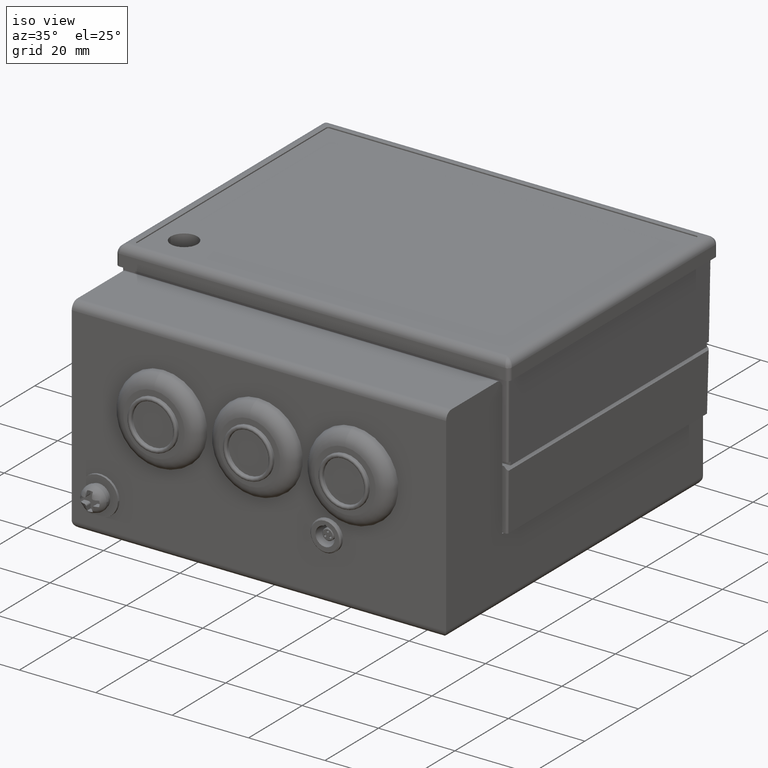
[diagram: clean part render]
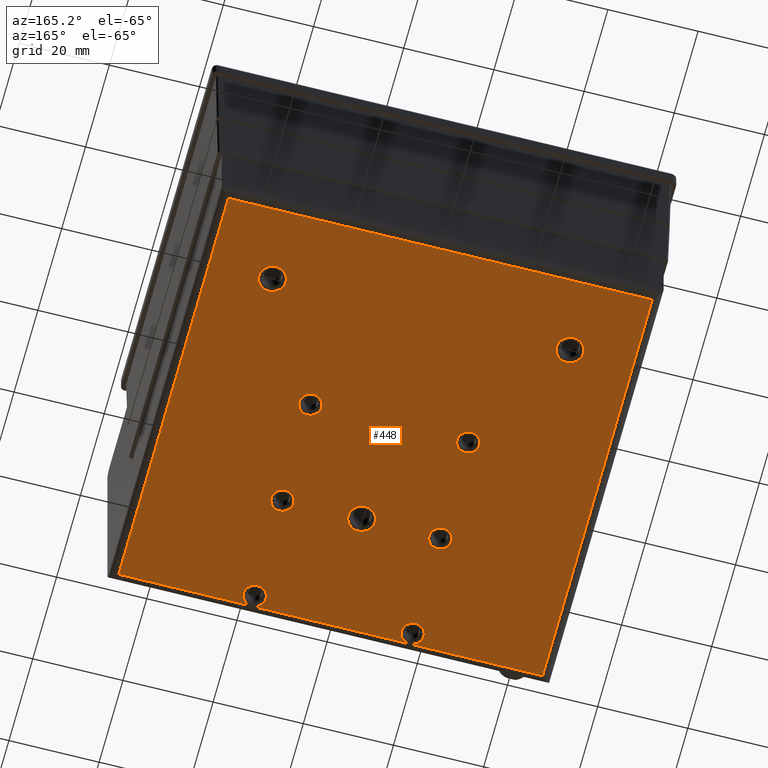
[diagram: tour spotlight — one face highlighted and labeled with its STEP entity id]
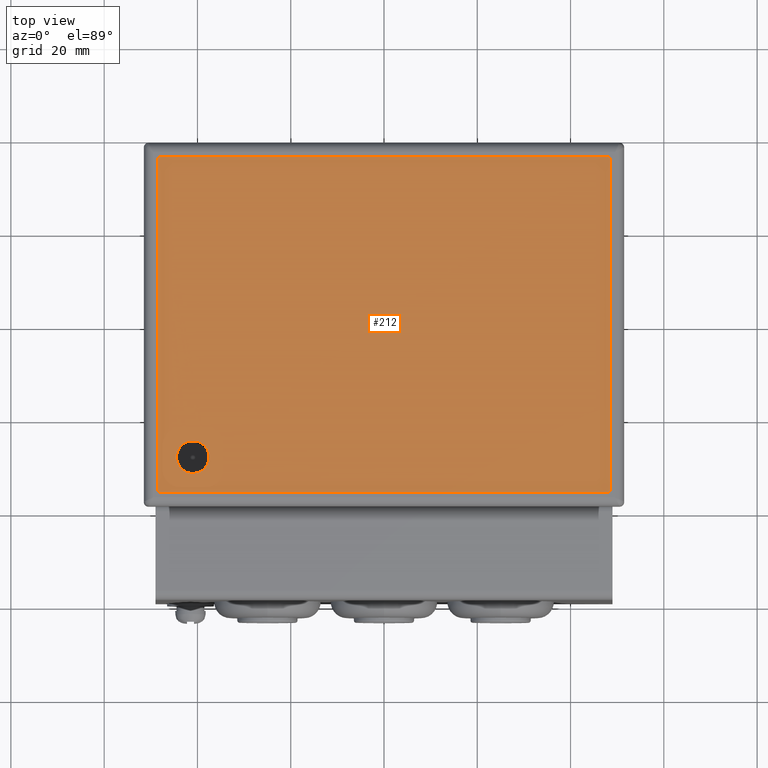
[diagram: tour spotlight — one face highlighted and labeled with its STEP entity id]
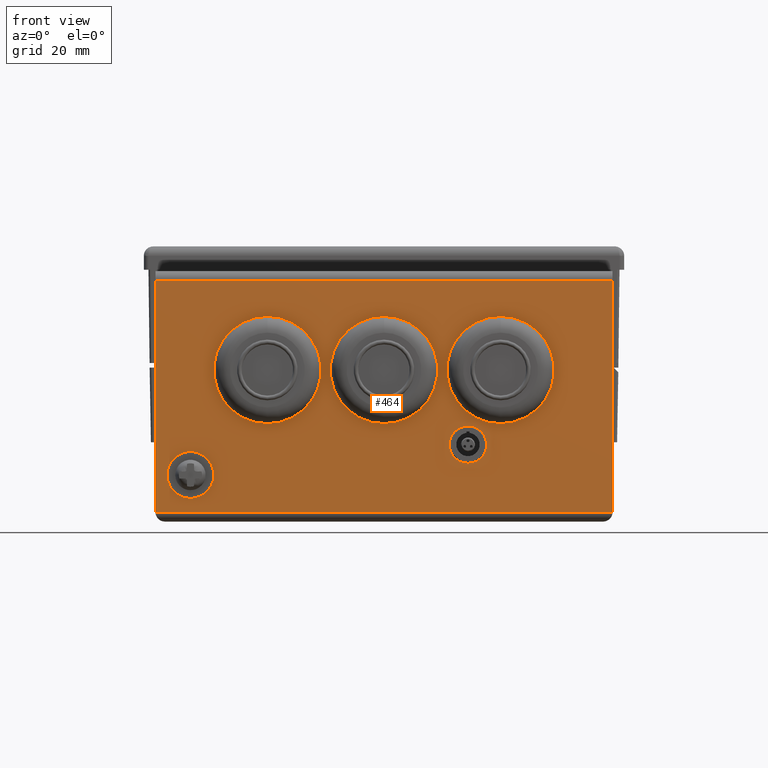
[diagram: tour spotlight — one face highlighted and labeled with its STEP entity id]
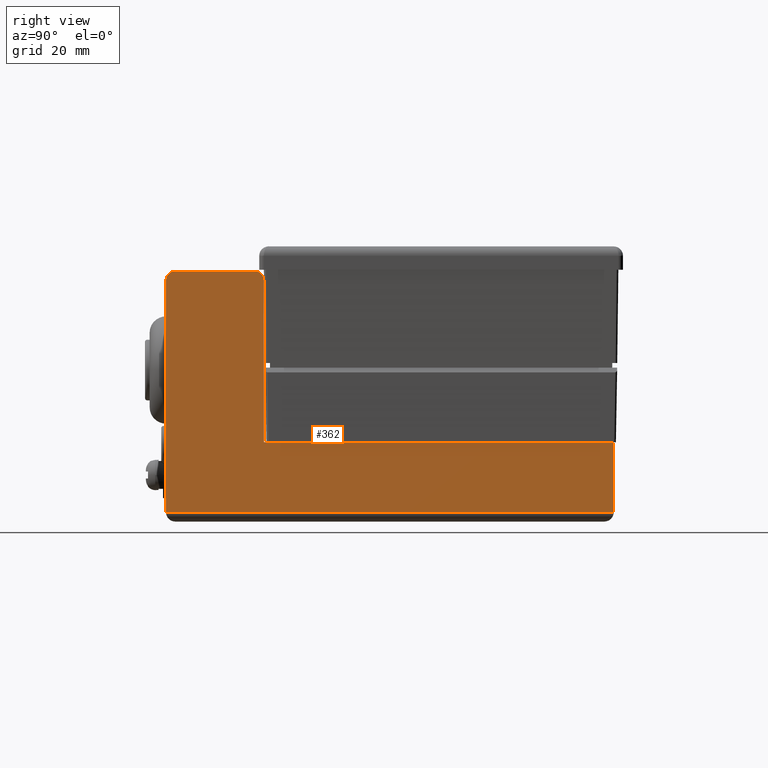
[diagram: tour spotlight — one face highlighted and labeled with its STEP entity id]
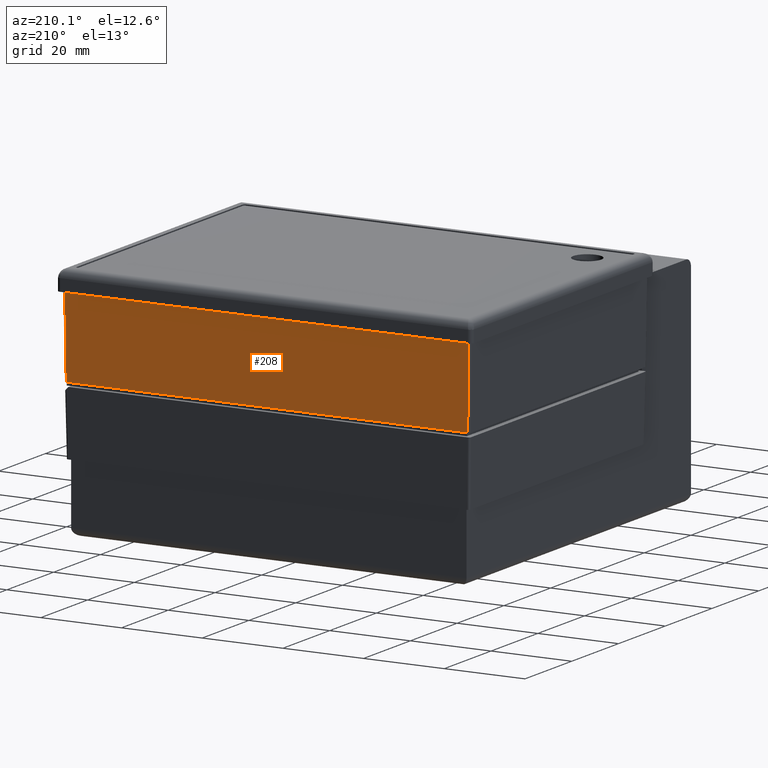
[diagram: tour spotlight — one face highlighted and labeled with its STEP entity id]
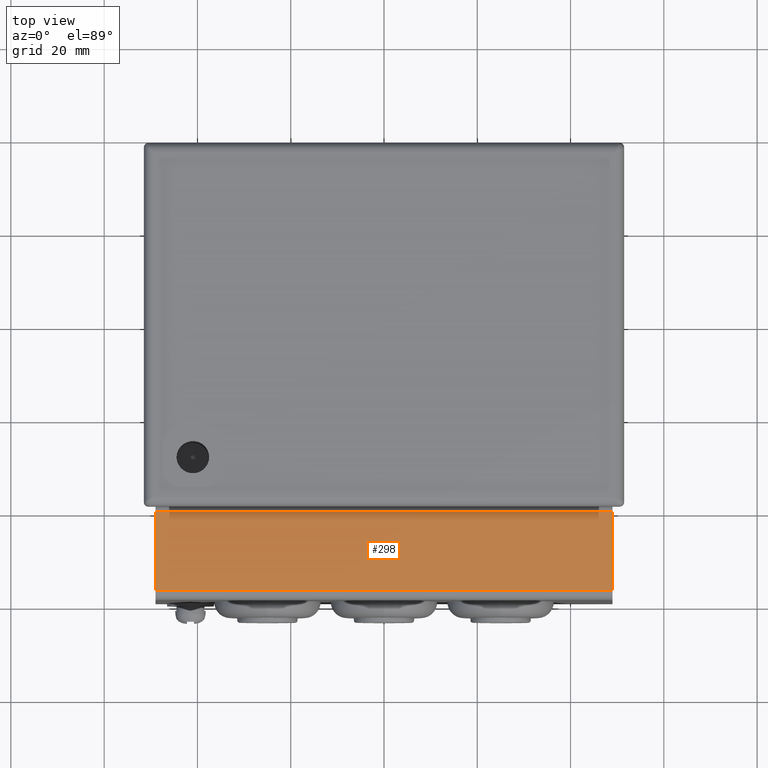
[diagram: tour spotlight — one face highlighted and labeled with its STEP entity id]
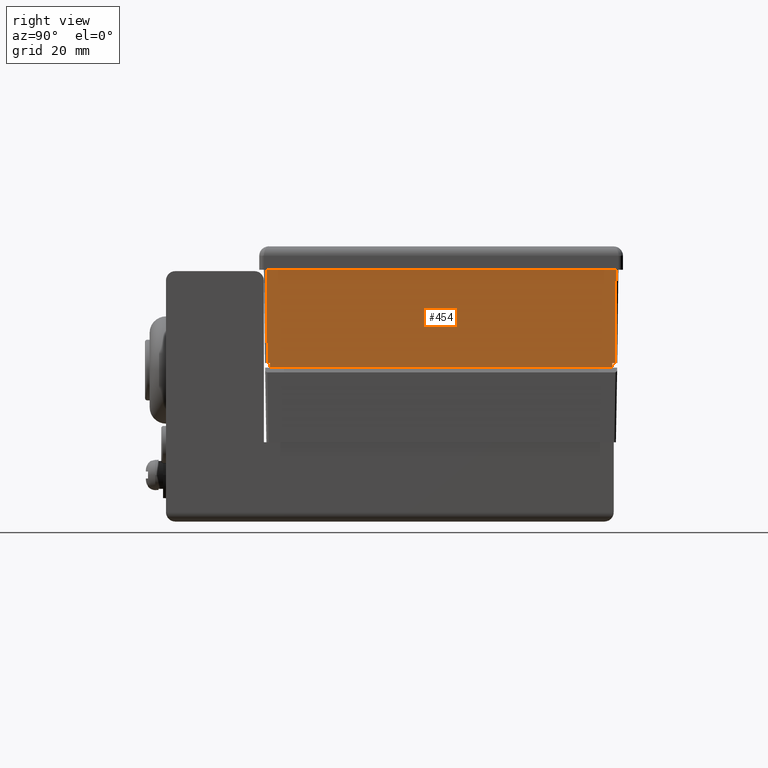
[diagram: tour spotlight — one face highlighted and labeled with its STEP entity id]
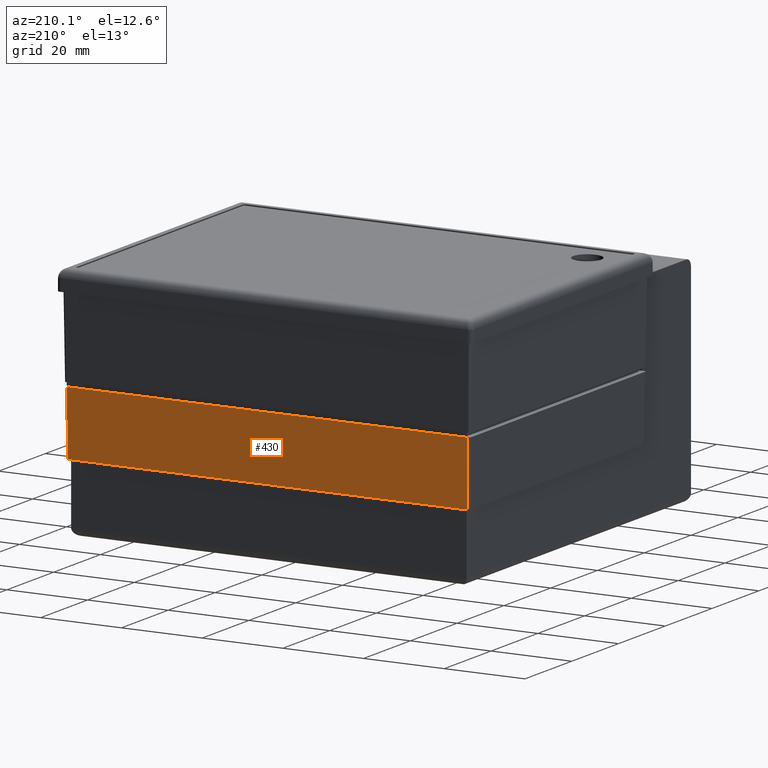
[diagram: tour spotlight — one face highlighted and labeled with its STEP entity id]
A machine part: a face-by-face anatomy tour. The part has 152 B-rep faces; the first image is the clean iso view, then the 8 largest visible faces are spotlighted one at a time (largest first), each with its STEP entity span.

Face 1 — auxiliary view, entity #448. In plain terms, the highlighted planar face has unit normal (0, 0, 1).
Definition (entity closure, byte-faithful):
#448 = ADVANCED_FACE( '', ( #953, #954, #955, #956, #957, #958, #959, #960 ), #961, .F. );
#953 = FACE_BOUND( '', #2045, .T. );
#954 = FACE_BOUND( '', #2046, .T. );
#955 = FACE_BOUND( '', #2047, .T. );
#956 = FACE_BOUND( '', #2048, .T. );
#957 = FACE_BOUND( '', #2049, .T. );
#958 = FACE_BOUND( '', #2050, .T. );
#959 = FACE_BOUND( '', #2051, .T. );
#960 = FACE_OUTER_BOUND( '', #2052, .T. );
#961 = PLANE( '', #2053 );
#2045 = EDGE_LOOP( '', ( #3145 ) );
#2046 = EDGE_LOOP( '', ( #3146 ) );
#2047 = EDGE_LOOP( '', ( #3147 ) );
#2048 = EDGE_LOOP( '', ( #3148 ) );
#2049 = EDGE_LOOP( '', ( #3149 ) );
#2050 = EDGE_LOOP( '', ( #3150 ) );
#2051 = EDGE_LOOP( '', ( #3151 ) );
#2052 = EDGE_LOOP( '', ( #3152, #3153, #3154, #3155, #3156, #3157, #3158, #3159 ) );
#2053 = AXIS2_PLACEMENT_3D( '', #3160, #3161, #3162 );
#3145 = ORIENTED_EDGE( '', *, *, #3586, .T. );
#3146 = ORIENTED_EDGE( '', *, *, #3625, .T. );
#3147 = ORIENTED_EDGE( '', *, *, #3567, .T. );
#3148 = ORIENTED_EDGE( '', *, *, #3545, .T. );
#3149 = ORIENTED_EDGE( '', *, *, #3658, .T. );
#3150 = ORIENTED_EDGE( '', *, *, #3641, .T. );
#3151 = ORIENTED_EDGE( '', *, *, #3547, .T. );
#3152 = ORIENTED_EDGE( '', *, *, #3332, .T. );
#3153 = ORIENTED_EDGE( '', *, *, #3691, .T. );
#3154 = ORIENTED_EDGE( '', *, *, #3331, .T. );
#3155 = ORIENTED_EDGE( '', *, *, #3429, .T. );
#3156 = ORIENTED_EDGE( '', *, *, #3330, .T. );
#3157 = ORIENTED_EDGE( '', *, *, #3601, .T. );
#3158 = ORIENTED_EDGE( '', *, *, #3461, .T. );
#3159 = ORIENTED_EDGE( '', *, *, #3478, .T. );
#3160 = CARTESIAN_POINT( '', ( -49.0000000000000, 37.0000000000000, -59.0000000000000 ) );
#3161 = DIRECTION( '', ( 0.000000000000000, 0.000000000000000, 1.00000000000000 ) );
#3162 = DIRECTION( '', ( -1.00000000000000, -0.000000000000000, 0.000000000000000 ) );
#3330 = EDGE_CURVE( '', #3807, #3805, #3808, .F. );
#3331 = EDGE_CURVE( '', #3809, #3807, #3810, .F. );
#3332 = EDGE_CURVE( '', #3800, #3809, #3811, .F. );
#3429 = EDGE_CURVE( '', #3807, #3807, #3972, .T. );
#3461 = EDGE_CURVE( '', #4021, #4019, #4022, .F. );
#3478 = EDGE_CURVE( '', #4019, #3800, #4046, .F. );
#3545 = EDGE_CURVE( '', #4147, #4147, #4148, .T. );
#3547 = EDGE_CURVE( '', #4150, #4150, #4151, .T. );
#3567 = EDGE_CURVE( '', #4179, #4179, #4180, .T. );
#3586 = EDGE_CURVE( '', #4204, #4204, #4205, .T. );
#3601 = EDGE_CURVE( '', #3805, #4021, #4225, .F. );
#3625 = EDGE_CURVE( '', #4256, #4256, #4257, .T. );
#3641 = EDGE_CURVE( '', #4277, #4277, #4278, .T. );
#3658 = EDGE_CURVE( '', #4297, #4297, #4298, .T. );
#3691 = EDGE_CURVE( '', #3809, #3809, #4336, .T. );
#3800 = VERTEX_POINT( '', #4470 );
#3805 = VERTEX_POINT( '', #4476 );
#3807 = VERTEX_POINT( '', #4478 );
#3808 = LINE( '', #4479, #4480 );
#3809 = VERTEX_POINT( '', #4481 );
#3810 = LINE( '', #4482, #4483 );
#3811 = LINE( '', #4484, #4485 );
#3972 = CIRCLE( '', #4691, 2.50000000000000 );
#4019 = VERTEX_POINT( '', #4746 );
#4021 = VERTEX_POINT( '', #4748 );
#4022 = LINE( '', #4749, #4750 );
#4046 = LINE( '', #4779, #4780 );
#4147 = VERTEX_POINT( '', #4919 );
#4148 = CIRCLE( '', #4920, 2.50000000000000 );
#4150 = VERTEX_POINT( '', #4922 );
#4151 = CIRCLE( '', #4923, 3.00000000000000 );
#4179 = VERTEX_POINT( '', #4952 );
#4180 = CIRCLE( '', #4953, 3.00000000000000 );
#4204 = VERTEX_POINT( '', #4989 );
#4205 = CIRCLE( '', #4990, 2.50000000000000 );
#4225 = LINE( '', #5071, #5072 );
#4256 = VERTEX_POINT( '', #5114 );
#4257 = CIRCLE( '', #5115, 2.50000000000000 );
#4277 = VERTEX_POINT( '', #5140 );
#4278 = CIRCLE( '', #5141, 3.00000000000000 );
#4297 = VERTEX_POINT( '', #5166 );
#4298 = CIRCLE( '', #5167, 2.50000000000000 );
#4336 = CIRCLE( '', #5213, 2.50000000000000 );
#4470 = CARTESIAN_POINT( '', ( 47.0000000000000, -57.0000000000000, -59.0000000000000 ) );
#4476 = CARTESIAN_POINT( '', ( -47.0000000000000, -57.0000000000000, -59.0000000000000 ) );
#4478 = CARTESIAN_POINT( '', ( -17.5000000000000, -57.0000000000000, -59.0000000000000 ) );
#4479 = CARTESIAN_POINT( '', ( -49.0000000000000, -57.0000000000000, -59.0000000000000 ) );
#4480 = VECTOR( '', #5323, 1000.00000000000 );
#4481 = CARTESIAN_POINT( '', ( 17.5000000000000, -57.0000000000000, -59.0000000000000 ) );
#4482 = CARTESIAN_POINT( '', ( -49.0000000000000, -57.0000000000000, -59.0000000000000 ) );
#4483 = VECTOR( '', #5324, 1000.00000000000 );
#4484 = CARTESIAN_POINT( '', ( -49.0000000000000, -57.0000000000000, -59.0000000000000 ) );
#4485 = VECTOR( '', #5325, 1000.00000000000 );
#4691 = AXIS2_PLACEMENT_3D( '', #5452, #5453, #5454 );
#4746 = CARTESIAN_POINT( '', ( 47.0000000000000, 35.0000000000000, -59.0000000000000 ) );
#4748 = CARTESIAN_POINT( '', ( -47.0000000000000, 35.0000000000000, -59.0000000000000 ) );
#4749 = CARTESIAN_POINT( '', ( 49.0000000000000, 35.0000000000000, -59.0000000000000 ) );
#4750 = VECTOR( '', #5505, 1000.00000000000 );
#4779 = CARTESIAN_POINT( '', ( 47.0000000000000, -59.0000000000000, -59.0000000000000 ) );
#4780 = VECTOR( '', #5526, 1000.00000000000 );
#4919 = CARTESIAN_POINT( '', ( -15.0000000000000, -7.70000000000003, -59.0000000000000 ) );
#4920 = AXIS2_PLACEMENT_3D( '', #5616, #5617, #5618 );
#4922 = CARTESIAN_POINT( '', ( 36.0000000000000, 19.0000000000000, -59.0000000000000 ) );
#4923 = AXIS2_PLACEMENT_3D( '', #5619, #5620, #5621 );
#4952 = CARTESIAN_POINT( '', ( 3.00000000000000, -31.0000000000000, -59.0000000000000 ) );
#4953 = AXIS2_PLACEMENT_3D( '', #5653, #5654, #5655 );
#4989 = CARTESIAN_POINT( '', ( 20.0000000000000, -31.2000000000000, -59.0000000000000 ) );
#4990 = AXIS2_PLACEMENT_3D( '', #5676, #5677, #5678 );
#5071 = CARTESIAN_POINT( '', ( -47.0000000000000, 37.0000000000000, -59.0000000000000 ) );
#5072 = VECTOR( '', #5683, 1000.00000000000 );
#5114 = CARTESIAN_POINT( '', ( 20.0000000000000, -7.70000000000003, -59.0000000000000 ) );
#5115 = AXIS2_PLACEMENT_3D( '', #5704, #5705, #5706 );
#5140 = CARTESIAN_POINT( '', ( -30.0000000000000, 19.0000000000000, -59.0000000000000 ) );
#5141 = AXIS2_PLACEMENT_3D( '', #5724, #5725, #5726 );
#5166 = CARTESIAN_POINT( '', ( -15.0000000000000, -31.2000000000000, -59.0000000000000 ) );
#5167 = AXIS2_PLACEMENT_3D( '', #5742, #5743, #5744 );
#5213 = AXIS2_PLACEMENT_3D( '', #5774, #5775, #5776 );
#5323 = DIRECTION( '', ( 1.00000000000000, -0.000000000000000, 0.000000000000000 ) );
#5324 = DIRECTION( '', ( 1.00000000000000, -0.000000000000000, 0.000000000000000 ) );
#5325 = DIRECTION( '', ( 1.00000000000000, -0.000000000000000, 0.000000000000000 ) );
#5452 = CARTESIAN_POINT( '', ( -17.5000000000000, -54.5000000000000, -59.0000000000000 ) );
#5453 = DIRECTION( '', ( 0.000000000000000, 0.000000000000000, 1.00000000000000 ) );
#5454 = DIRECTION( '', ( 1.00000000000000, 0.000000000000000, -0.000000000000000 ) );
#5505 = DIRECTION( '', ( -1.00000000000000, 0.000000000000000, 0.000000000000000 ) );
#5526 = DIRECTION( '', ( 0.000000000000000, 1.00000000000000, -0.000000000000000 ) );
#5616 = CARTESIAN_POINT( '', ( -17.5000000000000, -7.70000000000003, -59.0000000000000 ) );
#5617 = DIRECTION( '', ( 0.000000000000000, 0.000000000000000, 1.00000000000000 ) );
#5618 = DIRECTION( '', ( 1.00000000000000, 0.000000000000000, -0.000000000000000 ) );
#5619 = CARTESIAN_POINT( '', ( 33.0000000000000, 19.0000000000000, -59.0000000000000 ) );
#5620 = DIRECTION( '', ( 0.000000000000000, 0.000000000000000, 1.00000000000000 ) );
#5621 = DIRECTION( '', ( 1.00000000000000, 0.000000000000000, -0.000000000000000 ) );
#5653 = CARTESIAN_POINT( '', ( 0.000000000000000, -31.0000000000000, -59.0000000000000 ) );
#5654 = DIRECTION( '', ( 0.000000000000000, 0.000000000000000, 1.00000000000000 ) );
#5655 = DIRECTION( '', ( 1.00000000000000, 0.000000000000000, -0.000000000000000 ) );
#5676 = CARTESIAN_POINT( '', ( 17.5000000000000, -31.2000000000000, -59.0000000000000 ) );
#5677 = DIRECTION( '', ( 0.000000000000000, 0.000000000000000, 1.00000000000000 ) );
#5678 = DIRECTION( '', ( 1.00000000000000, 0.000000000000000, -0.000000000000000 ) );
#5683 = DIRECTION( '', ( 0.000000000000000, -1.00000000000000, 0.000000000000000 ) );
#5704 = CARTESIAN_POINT( '', ( 17.5000000000000, -7.70000000000003, -59.0000000000000 ) );
#5705 = DIRECTION( '', ( 0.000000000000000, 0.000000000000000, 1.00000000000000 ) );
#5706 = DIRECTION( '', ( 1.00000000000000, 0.000000000000000, -0.000000000000000 ) );
#5724 = CARTESIAN_POINT( '', ( -33.0000000000000, 19.0000000000000, -59.0000000000000 ) );
#5725 = DIRECTION( '', ( 0.000000000000000, 0.000000000000000, 1.00000000000000 ) );
#5726 = DIRECTION( '', ( 1.00000000000000, 0.000000000000000, -0.000000000000000 ) );
#5742 = CARTESIAN_POINT( '', ( -17.5000000000000, -31.2000000000000, -59.0000000000000 ) );
#5743 = DIRECTION( '', ( 0.000000000000000, 0.000000000000000, 1.00000000000000 ) );
#5744 = DIRECTION( '', ( 1.00000000000000, 0.000000000000000, -0.000000000000000 ) );
#5774 = CARTESIAN_POINT( '', ( 17.5000000000000, -54.5000000000000, -59.0000000000000 ) );
#5775 = DIRECTION( '', ( 0.000000000000000, 0.000000000000000, 1.00000000000000 ) );
#5776 = DIRECTION( '', ( 1.00000000000000, 0.000000000000000, -0.000000000000000 ) );

Face 2 — top view, entity #212. In plain terms, the highlighted planar face has unit normal (-0, 0, -1).
Definition (entity closure, byte-faithful):
#212 = ADVANCED_FACE( '', ( #555, #556 ), #557, .F. );
#555 = FACE_BOUND( '', #1085, .T. );
#556 = FACE_OUTER_BOUND( '', #1086, .T. );
#557 = PLANE( '', #1087 );
#1085 = EDGE_LOOP( '', ( #2251 ) );
#1086 = EDGE_LOOP( '', ( #2252, #2253, #2254, #2255, #2256, #2257, #2258, #2259 ) );
#1087 = AXIS2_PLACEMENT_3D( '', #2260, #2261, #2262 );
#2251 = ORIENTED_EDGE( '', *, *, #3304, .T. );
#2252 = ORIENTED_EDGE( '', *, *, #3367, .F. );
#2253 = ORIENTED_EDGE( '', *, *, #3368, .F. );
#2254 = ORIENTED_EDGE( '', *, *, #3369, .F. );
#2255 = ORIENTED_EDGE( '', *, *, #3370, .F. );
#2256 = ORIENTED_EDGE( '', *, *, #3371, .F. );
#2257 = ORIENTED_EDGE( '', *, *, #3372, .F. );
#2258 = ORIENTED_EDGE( '', *, *, #3373, .F. );
#2259 = ORIENTED_EDGE( '', *, *, #3374, .F. );
#2260 = CARTESIAN_POINT( '', ( -48.0000000000000, 35.5000000000000, -0.300000000000000 ) );
#2261 = DIRECTION( '', ( -0.000000000000000, 0.000000000000000, -1.00000000000000 ) );
#2262 = DIRECTION( '', ( 0.000000000000000, 1.00000000000000, 0.000000000000000 ) );
#3304 = EDGE_CURVE( '', #3760, #3760, #3761, .T. );
#3367 = EDGE_CURVE( '', #3869, #3870, #3871, .T. );
#3368 = EDGE_CURVE( '', #3872, #3869, #3873, .T. );
#3369 = EDGE_CURVE( '', #3874, #3872, #3875, .T. );
#3370 = EDGE_CURVE( '', #3876, #3874, #3877, .T. );
#3371 = EDGE_CURVE( '', #3878, #3876, #3879, .T. );
#3372 = EDGE_CURVE( '', #3880, #3878, #3881, .T. );
#3373 = EDGE_CURVE( '', #3882, #3880, #3883, .T. );
#3374 = EDGE_CURVE( '', #3870, #3882, #3884, .T. );
#3760 = VERTEX_POINT( '', #4417 );
#3761 = CIRCLE( '', #4418, 3.50000000000000 );
#3869 = VERTEX_POINT( '', #4562 );
#3870 = VERTEX_POINT( '', #4563 );
#3871 = CIRCLE( '', #4564, 0.500000000000000 );
#3872 = VERTEX_POINT( '', #4565 );
#3873 = LINE( '', #4566, #4567 );
#3874 = VERTEX_POINT( '', #4568 );
#3875 = CIRCLE( '', #4569, 0.500000000000000 );
#3876 = VERTEX_POINT( '', #4570 );
#3877 = LINE( '', #4571, #4572 );
#3878 = VERTEX_POINT( '', #4573 );
#3879 = CIRCLE( '', #4574, 0.500000000000000 );
#3880 = VERTEX_POINT( '', #4575 );
#3881 = LINE( '', #4576, #4577 );
#3882 = VERTEX_POINT( '', #4578 );
#3883 = CIRCLE( '', #4579, 0.500000000000000 );
#3884 = LINE( '', #4580, #4581 );
#4417 = CARTESIAN_POINT( '', ( -44.5002477736695, -28.4355394382600, -0.300000000000002 ) );
#4418 = AXIS2_PLACEMENT_3D( '', #5284, #5285, #5286 );
#4562 = CARTESIAN_POINT( '', ( -48.5000000000000, 35.5000000000000, -0.300000000000000 ) );
#4563 = CARTESIAN_POINT( '', ( -48.0000000000000, 36.0000000000000, -0.300000000000000 ) );
#4564 = AXIS2_PLACEMENT_3D( '', #5366, #5367, #5368 );
#4565 = CARTESIAN_POINT( '', ( -48.5000000000000, -35.5000000000000, -0.300000000000000 ) );
#4566 = CARTESIAN_POINT( '', ( -48.5000000000000, -35.5000000000000, -0.300000000000000 ) );
#4567 = VECTOR( '', #5369, 1000.00000000000 );
#4568 = CARTESIAN_POINT( '', ( -48.0000000000000, -36.0000000000000, -0.300000000000000 ) );
#4569 = AXIS2_PLACEMENT_3D( '', #5370, #5371, #5372 );
#4570 = CARTESIAN_POINT( '', ( 48.0000000000000, -36.0000000000000, -0.300000000000000 ) );
#4571 = CARTESIAN_POINT( '', ( 48.0000000000000, -36.0000000000000, -0.300000000000000 ) );
#4572 = VECTOR( '', #5373, 1000.00000000000 );
#4573 = CARTESIAN_POINT( '', ( 48.5000000000000, -35.5000000000000, -0.300000000000000 ) );
#4574 = AXIS2_PLACEMENT_3D( '', #5374, #5375, #5376 );
#4575 = CARTESIAN_POINT( '', ( 48.5000000000000, 35.5000000000000, -0.300000000000000 ) );
#4576 = CARTESIAN_POINT( '', ( 48.5000000000000, 35.5000000000000, -0.300000000000000 ) );
#4577 = VECTOR( '', #5377, 1000.00000000000 );
#4578 = CARTESIAN_POINT( '', ( 48.0000000000000, 36.0000000000000, -0.300000000000000 ) );
#4579 = AXIS2_PLACEMENT_3D( '', #5378, #5379, #5380 );
#4580 = CARTESIAN_POINT( '', ( -48.0000000000000, 36.0000000000000, -0.300000000000000 ) );
#4581 = VECTOR( '', #5381, 1000.00000000000 );
#5284 = CARTESIAN_POINT( '', ( -41.0002477736695, -28.4355394382600, -0.300000000000002 ) );
#5285 = DIRECTION( '', ( -0.000000000000000, 0.000000000000000, -1.00000000000000 ) );
#5286 = DIRECTION( '', ( -1.00000000000000, 6.12303176911189E-017, 0.000000000000000 ) );
#5366 = CARTESIAN_POINT( '', ( -48.0000000000000, 35.5000000000000, -0.300000000000000 ) );
#5367 = DIRECTION( '', ( 0.000000000000000, 0.000000000000000, -1.00000000000000 ) );
#5368 = DIRECTION( '', ( -1.00000000000000, 0.000000000000000, 0.000000000000000 ) );
#5369 = DIRECTION( '', ( 0.000000000000000, 1.00000000000000, 0.000000000000000 ) );
#5370 = CARTESIAN_POINT( '', ( -48.0000000000000, -35.5000000000000, -0.300000000000000 ) );
#5371 = DIRECTION( '', ( 0.000000000000000, 0.000000000000000, -1.00000000000000 ) );
#5372 = DIRECTION( '', ( 0.000000000000000, -1.00000000000000, 0.000000000000000 ) );
#5373 = DIRECTION( '', ( -1.00000000000000, -0.000000000000000, 0.000000000000000 ) );
#5374 = CARTESIAN_POINT( '', ( 48.0000000000000, -35.5000000000000, -0.300000000000000 ) );
#5375 = DIRECTION( '', ( 0.000000000000000, 0.000000000000000, -1.00000000000000 ) );
#5376 = DIRECTION( '', ( 1.00000000000000, 0.000000000000000, 0.000000000000000 ) );
#5377 = DIRECTION( '', ( 0.000000000000000, -1.00000000000000, 0.000000000000000 ) );
#5378 = CARTESIAN_POINT( '', ( 48.0000000000000, 35.5000000000000, -0.300000000000000 ) );
#5379 = DIRECTION( '', ( 0.000000000000000, 0.000000000000000, -1.00000000000000 ) );
#5380 = DIRECTION( '', ( 0.000000000000000, 1.00000000000000, 0.000000000000000 ) );
#5381 = DIRECTION( '', ( 1.00000000000000, 0.000000000000000, 0.000000000000000 ) );

Face 3 — front view, entity #464. In plain terms, the highlighted planar face has unit normal (0, -1, 0).
Definition (entity closure, byte-faithful):
#464 = ADVANCED_FACE( '', ( #987, #988, #989, #990, #991, #992 ), #993, .T. );
#987 = FACE_BOUND( '', #2079, .T. );
#988 = FACE_BOUND( '', #2080, .T. );
#989 = FACE_BOUND( '', #2081, .T. );
#990 = FACE_BOUND( '', #2082, .T. );
#991 = FACE_BOUND( '', #2083, .T. );
#992 = FACE_OUTER_BOUND( '', #2084, .T. );
#993 = PLANE( '', #2085 );
#2079 = EDGE_LOOP( '', ( #3220 ) );
#2080 = EDGE_LOOP( '', ( #3221 ) );
#2081 = EDGE_LOOP( '', ( #3222 ) );
#2082 = EDGE_LOOP( '', ( #3223 ) );
#2083 = EDGE_LOOP( '', ( #3224 ) );
#2084 = EDGE_LOOP( '', ( #3225, #3226, #3227, #3228 ) );
#2085 = AXIS2_PLACEMENT_3D( '', #3229, #3230, #3231 );
#3220 = ORIENTED_EDGE( '', *, *, #3718, .F. );
#3221 = ORIENTED_EDGE( '', *, *, #3356, .F. );
#3222 = ORIENTED_EDGE( '', *, *, #3704, .F. );
#3223 = ORIENTED_EDGE( '', *, *, #3392, .F. );
#3224 = ORIENTED_EDGE( '', *, *, #3432, .F. );
#3225 = ORIENTED_EDGE( '', *, *, #3619, .T. );
#3226 = ORIENTED_EDGE( '', *, *, #3519, .T. );
#3227 = ORIENTED_EDGE( '', *, *, #3719, .F. );
#3228 = ORIENTED_EDGE( '', *, *, #3328, .T. );
#3229 = CARTESIAN_POINT( '', ( -49.0000000000000, -59.0000000000000, -59.0000000000000 ) );
#3230 = DIRECTION( '', ( 0.000000000000000, -1.00000000000000, 0.000000000000000 ) );
#3231 = DIRECTION( '', ( -1.00000000000000, 0.000000000000000, 0.000000000000000 ) );
#3328 = EDGE_CURVE( '', #3803, #3801, #3804, .T. );
#3356 = EDGE_CURVE( '', #3852, #3852, #3853, .T. );
#3392 = EDGE_CURVE( '', #3914, #3914, #3915, .T. );
#3432 = EDGE_CURVE( '', #3976, #3976, #3977, .T. );
#3519 = EDGE_CURVE( '', #4111, #4108, #4112, .F. );
#3619 = EDGE_CURVE( '', #3801, #4111, #4249, .T. );
#3704 = EDGE_CURVE( '', #4349, #4349, #4350, .T. );
#3718 = EDGE_CURVE( '', #4366, #4366, #4367, .T. );
#3719 = EDGE_CURVE( '', #3803, #4108, #4368, .T. );
#3801 = VERTEX_POINT( '', #4471 );
#3803 = VERTEX_POINT( '', #4473 );
#3804 = LINE( '', #4474, #4475 );
#3852 = VERTEX_POINT( '', #4538 );
#3853 = CIRCLE( '', #4539, 4.00000000000000 );
#3914 = VERTEX_POINT( '', #4619 );
#3915 = CIRCLE( '', #4620, 11.4999999999970 );
#3976 = VERTEX_POINT( '', #4695 );
#3977 = CIRCLE( '', #4696, 11.4999999999970 );
#4108 = VERTEX_POINT( '', #4864 );
#4111 = VERTEX_POINT( '', #4867 );
#4112 = LINE( '', #4868, #4869 );
#4249 = LINE( '', #5104, #5105 );
#4349 = VERTEX_POINT( '', #5228 );
#4350 = CIRCLE( '', #5229, 11.4999999999970 );
#4366 = VERTEX_POINT( '', #5247 );
#4367 = CIRCLE( '', #5248, 5.00000000000000 );
#4368 = LINE( '', #5249, #5250 );
#4471 = CARTESIAN_POINT( '', ( 49.0000000000000, -59.0000000000000, -57.0000000000000 ) );
#4473 = CARTESIAN_POINT( '', ( -49.0000000000000, -59.0000000000000, -57.0000000000000 ) );
#4474 = CARTESIAN_POINT( '', ( 49.0000000000000, -59.0000000000000, -57.0000000000000 ) );
#4475 = VECTOR( '', #5319, 1000.00000000000 );
#4538 = CARTESIAN_POINT( '', ( 22.0000000000000, -59.0000000000000, -42.5000000000000 ) );
#4539 = AXIS2_PLACEMENT_3D( '', #5356, #5357, #5358 );
#4619 = CARTESIAN_POINT( '', ( -2.42861286636753E-014, -59.0000000000000, -37.9999999999970 ) );
#4620 = AXIS2_PLACEMENT_3D( '', #5402, #5403, #5404 );
#4695 = CARTESIAN_POINT( '', ( -25.0000000000000, -59.0000000000000, -37.9999999999970 ) );
#4696 = AXIS2_PLACEMENT_3D( '', #5458, #5459, #5460 );
#4864 = CARTESIAN_POINT( '', ( -49.0000000000000, -59.0000000000000, -7.30000000000001 ) );
#4867 = CARTESIAN_POINT( '', ( 49.0000000000000, -59.0000000000000, -7.30000000000001 ) );
#4868 = CARTESIAN_POINT( '', ( -49.0000000000000, -59.0000000000000, -7.30000000000000 ) );
#4869 = VECTOR( '', #5584, 1000.00000000000 );
#5104 = CARTESIAN_POINT( '', ( 49.0000000000000, -59.0000000000000, -59.0000000000000 ) );
#5105 = VECTOR( '', #5698, 1000.00000000000 );
#5228 = CARTESIAN_POINT( '', ( 25.0000000000000, -59.0000000000000, -37.9999999999970 ) );
#5229 = AXIS2_PLACEMENT_3D( '', #5779, #5780, #5781 );
#5247 = CARTESIAN_POINT( '', ( -41.5000000000000, -59.0000000000000, -54.0000000000000 ) );
#5248 = AXIS2_PLACEMENT_3D( '', #5790, #5791, #5792 );
#5249 = CARTESIAN_POINT( '', ( -49.0000000000000, -59.0000000000000, -59.0000000000000 ) );
#5250 = VECTOR( '', #5793, 1000.00000000000 );
#5319 = DIRECTION( '', ( 1.00000000000000, 0.000000000000000, -0.000000000000000 ) );
#5356 = CARTESIAN_POINT( '', ( 18.0000000000000, -59.0000000000000, -42.5000000000000 ) );
#5357 = DIRECTION( '', ( 0.000000000000000, -1.00000000000000, 0.000000000000000 ) );
#5358 = DIRECTION( '', ( 1.00000000000000, 0.000000000000000, -1.22460635382238E-016 ) );
#5402 = CARTESIAN_POINT( '', ( -2.42861286636753E-014, -59.0000000000000, -26.5000000000000 ) );
#5403 = DIRECTION( '', ( 0.000000000000000, -1.00000000000000, 0.000000000000000 ) );
#5404 = DIRECTION( '', ( 0.000000000000000, 0.000000000000000, -1.00000000000000 ) );
#5458 = CARTESIAN_POINT( '', ( -25.0000000000000, -59.0000000000000, -26.5000000000000 ) );
#5459 = DIRECTION( '', ( 0.000000000000000, -1.00000000000000, 0.000000000000000 ) );
#5460 = DIRECTION( '', ( 0.000000000000000, 0.000000000000000, -1.00000000000000 ) );
#5584 = DIRECTION( '', ( 1.00000000000000, 0.000000000000000, 0.000000000000000 ) );
#5698 = DIRECTION( '', ( -0.000000000000000, 0.000000000000000, 1.00000000000000 ) );
#5779 = CARTESIAN_POINT( '', ( 25.0000000000000, -59.0000000000000, -26.5000000000000 ) );
#5780 = DIRECTION( '', ( 0.000000000000000, -1.00000000000000, 0.000000000000000 ) );
#5781 = DIRECTION( '', ( 0.000000000000000, 0.000000000000000, -1.00000000000000 ) );
#5790 = CARTESIAN_POINT( '', ( -41.5000000000000, -59.0000000000000, -49.0000000000000 ) );
#5791 = DIRECTION( '', ( 0.000000000000000, -1.00000000000000, 0.000000000000000 ) );
#5792 = DIRECTION( '', ( 0.000000000000000, 0.000000000000000, -1.00000000000000 ) );
#5793 = DIRECTION( '', ( -0.000000000000000, 0.000000000000000, 1.00000000000000 ) );

Face 4 — right view, entity #362. In plain terms, the highlighted planar face has unit normal (1, 0, 0).
Definition (entity closure, byte-faithful):
#362 = ADVANCED_FACE( '', ( #809 ), #810, .T. );
#809 = FACE_OUTER_BOUND( '', #1769, .T. );
#810 = PLANE( '', #1770 );
#1769 = EDGE_LOOP( '', ( #2804, #2805, #2806, #2807, #2808, #2809, #2810, #2811, #2812 ) );
#1770 = AXIS2_PLACEMENT_3D( '', #2813, #2814, #2815 );
#2804 = ORIENTED_EDGE( '', *, *, #3528, .F. );
#2805 = ORIENTED_EDGE( '', *, *, #3520, .T. );
#2806 = ORIENTED_EDGE( '', *, *, #3619, .F. );
#2807 = ORIENTED_EDGE( '', *, *, #3479, .T. );
#2808 = ORIENTED_EDGE( '', *, *, #3350, .T. );
#2809 = ORIENTED_EDGE( '', *, *, #3620, .F. );
#2810 = ORIENTED_EDGE( '', *, *, #3467, .F. );
#2811 = ORIENTED_EDGE( '', *, *, #3438, .T. );
#2812 = ORIENTED_EDGE( '', *, *, #3293, .T. );
#2813 = CARTESIAN_POINT( '', ( 49.0000000000000, -59.0000000000000, -59.0000000000000 ) );
#2814 = DIRECTION( '', ( 1.00000000000000, 0.000000000000000, 0.000000000000000 ) );
#2815 = DIRECTION( '', ( 0.000000000000000, -1.00000000000000, 0.000000000000000 ) );
#3293 = EDGE_CURVE( '', #3742, #3740, #3743, .T. );
#3350 = EDGE_CURVE( '', #3841, #3842, #3843, .T. );
#3438 = EDGE_CURVE( '', #3986, #3742, #3987, .T. );
#3467 = EDGE_CURVE( '', #3986, #4027, #4030, .T. );
#3479 = EDGE_CURVE( '', #3801, #3841, #4047, .T. );
#3520 = EDGE_CURVE( '', #4113, #4111, #4114, .T. );
#3528 = EDGE_CURVE( '', #4113, #3740, #4124, .T. );
#3619 = EDGE_CURVE( '', #3801, #4111, #4249, .T. );
#3620 = EDGE_CURVE( '', #4027, #3842, #4250, .T. );
#3740 = VERTEX_POINT( '', #4393 );
#3742 = VERTEX_POINT( '', #4396 );
#3743 = CIRCLE( '', #4397, 2.00000000000000 );
#3801 = VERTEX_POINT( '', #4471 );
#3841 = VERTEX_POINT( '', #4523 );
#3842 = VERTEX_POINT( '', #4524 );
#3843 = LINE( '', #4525, #4526 );
#3986 = VERTEX_POINT( '', #4706 );
#3987 = LINE( '', #4707, #4708 );
#4027 = VERTEX_POINT( '', #4755 );
#4030 = LINE( '', #4760, #4761 );
#4047 = LINE( '', #4781, #4782 );
#4111 = VERTEX_POINT( '', #4867 );
#4113 = VERTEX_POINT( '', #4870 );
#4114 = CIRCLE( '', #4871, 2.00000000000000 );
#4124 = LINE( '', #4885, #4886 );
#4249 = LINE( '', #5104, #5105 );
#4250 = LINE( '', #5106, #5107 );
#4393 = CARTESIAN_POINT( '', ( 49.0000000000000, -40.0000000000000, -5.30000000000000 ) );
#4396 = CARTESIAN_POINT( '', ( 49.0000000000000, -38.0000000000000, -7.30000000000000 ) );
#4397 = AXIS2_PLACEMENT_3D( '', #5266, #5267, #5268 );
#4471 = CARTESIAN_POINT( '', ( 49.0000000000000, -59.0000000000000, -57.0000000000000 ) );
#4523 = CARTESIAN_POINT( '', ( 49.0000000000000, 37.0000000000000, -57.0000000000000 ) );
#4524 = CARTESIAN_POINT( '', ( 49.0000000000000, 37.0000000000000, -42.0000000000000 ) );
#4525 = CARTESIAN_POINT( '', ( 49.0000000000000, 37.0000000000000, -59.0000000000000 ) );
#4526 = VECTOR( '', #5349, 1000.00000000000 );
#4706 = CARTESIAN_POINT( '', ( 49.0000000000000, -38.0000000000000, -42.0000000000000 ) );
#4707 = CARTESIAN_POINT( '', ( 49.0000000000000, -38.0000000000000, -42.0000000000000 ) );
#4708 = VECTOR( '', #5468, 1000.00000000000 );
#4755 = CARTESIAN_POINT( '', ( 49.0000000000000, -37.4707189611485, -42.0000000000000 ) );
#4760 = CARTESIAN_POINT( '', ( 49.0000000000000, -39.5000000000000, -42.0000000000000 ) );
#4761 = VECTOR( '', #5511, 1000.00000000000 );
#4781 = CARTESIAN_POINT( '', ( 49.0000000000000, 37.0000000000000, -57.0000000000000 ) );
#4782 = VECTOR( '', #5527, 1000.00000000000 );
#4867 = CARTESIAN_POINT( '', ( 49.0000000000000, -59.0000000000000, -7.30000000000001 ) );
#4870 = CARTESIAN_POINT( '', ( 49.0000000000000, -57.0000000000000, -5.30000000000000 ) );
#4871 = AXIS2_PLACEMENT_3D( '', #5585, #5586, #5587 );
#4885 = CARTESIAN_POINT( '', ( 49.0000000000000, 37.0000000000000, -5.30000000000000 ) );
#4886 = VECTOR( '', #5595, 1000.00000000000 );
#5104 = CARTESIAN_POINT( '', ( 49.0000000000000, -59.0000000000000, -59.0000000000000 ) );
#5105 = VECTOR( '', #5698, 1000.00000000000 );
#5106 = CARTESIAN_POINT( '', ( 49.0000000000000, -39.5000000000000, -42.0000000000000 ) );
#5107 = VECTOR( '', #5699, 1000.00000000000 );
#5266 = CARTESIAN_POINT( '', ( 49.0000000000000, -40.0000000000000, -7.30000000000000 ) );
#5267 = DIRECTION( '', ( 1.00000000000000, 0.000000000000000, 0.000000000000000 ) );
#5268 = DIRECTION( '', ( 0.000000000000000, 0.000000000000000, -1.00000000000000 ) );
#5349 = DIRECTION( '', ( -0.000000000000000, 0.000000000000000, 1.00000000000000 ) );
#5468 = DIRECTION( '', ( -0.000000000000000, 0.000000000000000, 1.00000000000000 ) );
#5511 = DIRECTION( '', ( 0.000000000000000, 1.00000000000000, 0.000000000000000 ) );
#5527 = DIRECTION( '', ( 0.000000000000000, 1.00000000000000, -0.000000000000000 ) );
#5585 = CARTESIAN_POINT( '', ( 49.0000000000000, -57.0000000000000, -7.30000000000000 ) );
#5586 = DIRECTION( '', ( 1.00000000000000, 0.000000000000000, 0.000000000000000 ) );
#5587 = DIRECTION( '', ( 0.000000000000000, 0.000000000000000, -1.00000000000000 ) );
#5595 = DIRECTION( '', ( 0.000000000000000, 1.00000000000000, 0.000000000000000 ) );
#5698 = DIRECTION( '', ( -0.000000000000000, 0.000000000000000, 1.00000000000000 ) );
#5699 = DIRECTION( '', ( 0.000000000000000, 1.00000000000000, 0.000000000000000 ) );

Face 5 — auxiliary view, entity #208. In plain terms, the highlighted planar face has unit normal (0, 0.9999, -0.0122).
Definition (entity closure, byte-faithful):
#208 = ADVANCED_FACE( '', ( #549 ), #550, .T. );
#549 = FACE_OUTER_BOUND( '', #1079, .T. );
#550 = PLANE( '', #1080 );
#1079 = EDGE_LOOP( '', ( #2234, #2235, #2236, #2237 ) );
#1080 = AXIS2_PLACEMENT_3D( '', #2238, #2239, #2240 );
#2234 = ORIENTED_EDGE( '', *, *, #3336, .F. );
#2235 = ORIENTED_EDGE( '', *, *, #3358, .T. );
#2236 = ORIENTED_EDGE( '', *, *, #3359, .T. );
#2237 = ORIENTED_EDGE( '', *, *, #3360, .T. );
#2238 = CARTESIAN_POINT( '', ( -50.5000000000000, 38.0000000000000, -5.00000000000000 ) );
#2239 = DIRECTION( '', ( 0.000000000000000, 0.999925369660452, -0.0122170008352472 ) );
#2240 = DIRECTION( '', ( 0.000000000000000, 0.0122170008352472, 0.999925369660452 ) );
#3336 = EDGE_CURVE( '', #3815, #3817, #3818, .F. );
#3358 = EDGE_CURVE( '', #3815, #3855, #3856, .F. );
#3359 = EDGE_CURVE( '', #3855, #3857, #3858, .F. );
#3360 = EDGE_CURVE( '', #3857, #3817, #3859, .T. );
#3815 = VERTEX_POINT( '', #4490 );
#3817 = VERTEX_POINT( '', #4492 );
#3818 = LINE( '', #4493, #4494 );
#3855 = VERTEX_POINT( '', #4541 );
#3856 = LINE( '', #4542, #4543 );
#3857 = VERTEX_POINT( '', #4544 );
#3858 = LINE( '', #4545, #4546 );
#3859 = LINE( '', #4547, #4548 );
#4490 = CARTESIAN_POINT( '', ( -49.7556790619254, 37.7556417467557, -25.0000000000000 ) );
#4492 = CARTESIAN_POINT( '', ( 49.7556790619254, 37.7556417467557, -25.0000000000000 ) );
#4493 = CARTESIAN_POINT( '', ( -50.5000000000000, 37.7556417467557, -25.0000000000000 ) );
#4494 = VECTOR( '', #5330, 1000.00000000000 );
#4541 = CARTESIAN_POINT( '', ( -50.0000373151698, 38.0000000000000, -5.00000000000000 ) );
#4542 = CARTESIAN_POINT( '', ( -50.0001119260189, 38.0000746108492, -4.99389332276005 ) );
#4543 = VECTOR( '', #5359, 1000.00000000000 );
#4544 = CARTESIAN_POINT( '', ( 50.0000373151698, 38.0000000000000, -5.00000000000000 ) );
#4545 = CARTESIAN_POINT( '', ( -50.5000000000000, 38.0000000000000, -5.00000000000000 ) );
#4546 = VECTOR( '', #5360, 1000.00000000000 );
#4547 = CARTESIAN_POINT( '', ( 49.9850394096188, 37.9850020944490, -6.22753419226609 ) );
#4548 = VECTOR( '', #5361, 1000.00000000000 );
#5330 = DIRECTION( '', ( -1.00000000000000, 0.000000000000000, 0.000000000000000 ) );
#5359 = DIRECTION( '', ( 0.0122160892123960, -0.0122160892123960, -0.999850756027473 ) );
#5360 = DIRECTION( '', ( -1.00000000000000, 0.000000000000000, 0.000000000000000 ) );
#5361 = DIRECTION( '', ( -0.0122160892123960, -0.0122160892123960, -0.999850756027473 ) );

Face 6 — top view, entity #298. In plain terms, the highlighted planar face has unit normal (0, 0, 1).
Definition (entity closure, byte-faithful):
#298 = ADVANCED_FACE( '', ( #699 ), #700, .T. );
#699 = FACE_OUTER_BOUND( '', #1493, .T. );
#700 = PLANE( '', #1494 );
#1493 = EDGE_LOOP( '', ( #2565, #2566, #2567, #2568 ) );
#1494 = AXIS2_PLACEMENT_3D( '', #2569, #2570, #2571 );
#2565 = ORIENTED_EDGE( '', *, *, #3527, .T. );
#2566 = ORIENTED_EDGE( '', *, *, #3521, .T. );
#2567 = ORIENTED_EDGE( '', *, *, #3528, .T. );
#2568 = ORIENTED_EDGE( '', *, *, #3292, .T. );
#2569 = CARTESIAN_POINT( '', ( -49.0000000000000, 37.0000000000000, -5.30000000000000 ) );
#2570 = DIRECTION( '', ( 0.000000000000000, 0.000000000000000, 1.00000000000000 ) );
#2571 = DIRECTION( '', ( -1.00000000000000, -0.000000000000000, 0.000000000000000 ) );
#3292 = EDGE_CURVE( '', #3740, #3737, #3741, .F. );
#3521 = EDGE_CURVE( '', #4109, #4113, #4115, .T. );
#3527 = EDGE_CURVE( '', #3737, #4109, #4123, .T. );
#3528 = EDGE_CURVE( '', #4113, #3740, #4124, .T. );
#3737 = VERTEX_POINT( '', #4390 );
#3740 = VERTEX_POINT( '', #4393 );
#3741 = LINE( '', #4394, #4395 );
#4109 = VERTEX_POINT( '', #4865 );
#4113 = VERTEX_POINT( '', #4870 );
#4115 = LINE( '', #4872, #4873 );
#4123 = LINE( '', #4883, #4884 );
#4124 = LINE( '', #4885, #4886 );
#4390 = CARTESIAN_POINT( '', ( -49.0000000000000, -40.0000000000000, -5.30000000000000 ) );
#4393 = CARTESIAN_POINT( '', ( 49.0000000000000, -40.0000000000000, -5.30000000000000 ) );
#4394 = CARTESIAN_POINT( '', ( -49.0000000000000, -40.0000000000000, -5.30000000000000 ) );
#4395 = VECTOR( '', #5265, 1000.00000000000 );
#4865 = CARTESIAN_POINT( '', ( -49.0000000000000, -57.0000000000000, -5.30000000000000 ) );
#4870 = CARTESIAN_POINT( '', ( 49.0000000000000, -57.0000000000000, -5.30000000000000 ) );
#4872 = CARTESIAN_POINT( '', ( -49.0000000000000, -57.0000000000000, -5.30000000000000 ) );
#4873 = VECTOR( '', #5588, 1000.00000000000 );
#4883 = CARTESIAN_POINT( '', ( -49.0000000000000, 37.0000000000000, -5.30000000000000 ) );
#4884 = VECTOR( '', #5594, 1000.00000000000 );
#4885 = CARTESIAN_POINT( '', ( 49.0000000000000, 37.0000000000000, -5.30000000000000 ) );
#4886 = VECTOR( '', #5595, 1000.00000000000 );
#5265 = DIRECTION( '', ( 1.00000000000000, -0.000000000000000, 0.000000000000000 ) );
#5588 = DIRECTION( '', ( 1.00000000000000, 0.000000000000000, -0.000000000000000 ) );
#5594 = DIRECTION( '', ( 0.000000000000000, -1.00000000000000, 0.000000000000000 ) );
#5595 = DIRECTION( '', ( 0.000000000000000, 1.00000000000000, 0.000000000000000 ) );

Face 7 — right view, entity #454. In plain terms, the highlighted planar face has unit normal (0.9999, 0, -0.0122).
Definition (entity closure, byte-faithful):
#454 = ADVANCED_FACE( '', ( #970 ), #971, .T. );
#970 = FACE_OUTER_BOUND( '', #2062, .T. );
#971 = PLANE( '', #2063 );
#2062 = EDGE_LOOP( '', ( #3175, #3176, #3177, #3178, #3179, #3180, #3181, #3182 ) );
#2063 = AXIS2_PLACEMENT_3D( '', #3183, #3184, #3185 );
#3175 = ORIENTED_EDGE( '', *, *, #3338, .F. );
#3176 = ORIENTED_EDGE( '', *, *, #3710, .T. );
#3177 = ORIENTED_EDGE( '', *, *, #3674, .T. );
#3178 = ORIENTED_EDGE( '', *, *, #3578, .T. );
#3179 = ORIENTED_EDGE( '', *, *, #3342, .F. );
#3180 = ORIENTED_EDGE( '', *, *, #3365, .F. );
#3181 = ORIENTED_EDGE( '', *, *, #3700, .F. );
#3182 = ORIENTED_EDGE( '', *, *, #3636, .T. );
#3183 = CARTESIAN_POINT( '', ( 50.5000000000000, 38.0000000000000, -5.00000000000000 ) );
#3184 = DIRECTION( '', ( 0.999925369660452, 0.000000000000000, -0.0122170008352472 ) );
#3185 = DIRECTION( '', ( -0.0122170008352472, 0.000000000000000, -0.999925369660452 ) );
#3338 = EDGE_CURVE( '', #3819, #3821, #3822, .F. );
#3342 = EDGE_CURVE( '', #3827, #3829, #3830, .F. );
#3365 = EDGE_CURVE( '', #3865, #3827, #3867, .F. );
#3578 = EDGE_CURVE( '', #4193, #3829, #4194, .T. );
#3636 = EDGE_CURVE( '', #4270, #3821, #4271, .F. );
#3674 = EDGE_CURVE( '', #4315, #4193, #4316, .F. );
#3700 = EDGE_CURVE( '', #4270, #3865, #4345, .F. );
#3710 = EDGE_CURVE( '', #3819, #4315, #4357, .F. );
#3819 = VERTEX_POINT( '', #4495 );
#3821 = VERTEX_POINT( '', #4497 );
#3822 = LINE( '', #4498, #4499 );
#3827 = VERTEX_POINT( '', #4506 );
#3829 = VERTEX_POINT( '', #4509 );
#3830 = LINE( '', #4510, #4511 );
#3865 = VERTEX_POINT( '', #4556 );
#3867 = LINE( '', #4559, #4560 );
#4193 = VERTEX_POINT( '', #4976 );
#4194 = LINE( '', #4977, #4978 );
#4270 = VERTEX_POINT( '', #5131 );
#4271 = LINE( '', #5132, #5133 );
#4315 = VERTEX_POINT( '', #5189 );
#4316 = LINE( '', #5190, #5191 );
#4345 = LINE( '', #5223, #5224 );
#4357 = LINE( '', #5236, #5237 );
#4495 = CARTESIAN_POINT( '', ( 50.2556417467557, 37.2556790619254, -25.0000000000000 ) );
#4497 = CARTESIAN_POINT( '', ( 50.2556417467557, 36.7000000000000, -25.0000000000000 ) );
#4498 = CARTESIAN_POINT( '', ( 50.2556417467557, 38.0000000000000, -25.0000000000000 ) );
#4499 = VECTOR( '', #5334, 1000.00000000000 );
#4506 = CARTESIAN_POINT( '', ( 50.2556417467557, -36.7000000000000, -25.0000000000000 ) );
#4509 = CARTESIAN_POINT( '', ( 50.2556417467557, -37.2556790619254, -25.0000000000000 ) );
#4510 = CARTESIAN_POINT( '', ( 50.2556417467557, 38.0000000000000, -25.0000000000000 ) );
#4511 = VECTOR( '', #5338, 1000.00000000000 );
#4556 = CARTESIAN_POINT( '', ( 50.2434238340934, -36.7000000000000, -26.0000000000000 ) );
#4559 = CARTESIAN_POINT( '', ( 50.2434621293972, -36.7000000000000, -25.9968656427024 ) );
#4560 = VECTOR( '', #5365, 1000.00000000000 );
#4976 = CARTESIAN_POINT( '', ( 50.5000000000000, -37.5000373151698, -5.00000000000000 ) );
#4977 = CARTESIAN_POINT( '', ( 50.4887329153401, -37.4887702305099, -5.92217754139826 ) );
#4978 = VECTOR( '', #5665, 1000.00000000000 );
#5131 = CARTESIAN_POINT( '', ( 50.2434238340934, 36.7000000000000, -26.0000000000000 ) );
#5132 = CARTESIAN_POINT( '', ( 50.5000000000000, 36.7000000000000, -5.00000000000000 ) );
#5133 = VECTOR( '', #5719, 1000.00000000000 );
#5189 = CARTESIAN_POINT( '', ( 50.5000000000000, 37.5000373151698, -5.00000000000000 ) );
#5190 = CARTESIAN_POINT( '', ( 50.5000000000000, 38.0000000000000, -5.00000000000000 ) );
#5191 = VECTOR( '', #5756, 1000.00000000000 );
#5223 = CARTESIAN_POINT( '', ( 50.2434238340934, 38.0000000000000, -26.0000000000000 ) );
#5224 = VECTOR( '', #5778, 1000.00000000000 );
#5236 = CARTESIAN_POINT( '', ( 50.5000746108492, 37.5001119260190, -4.99389332276005 ) );
#5237 = VECTOR( '', #5785, 1000.00000000000 );
#5334 = DIRECTION( '', ( 0.000000000000000, 1.00000000000000, 0.000000000000000 ) );
#5338 = DIRECTION( '', ( 0.000000000000000, 1.00000000000000, 0.000000000000000 ) );
#5365 = DIRECTION( '', ( -0.0122170008352472, 0.000000000000000, -0.999925369660452 ) );
#5665 = DIRECTION( '', ( -0.0122160892123960, 0.0122160892123960, -0.999850756027473 ) );
#5719 = DIRECTION( '', ( -0.0122170008352472, 0.000000000000000, -0.999925369660452 ) );
#5756 = DIRECTION( '', ( 0.000000000000000, 1.00000000000000, 0.000000000000000 ) );
#5778 = DIRECTION( '', ( 0.000000000000000, 1.00000000000000, 0.000000000000000 ) );
#5785 = DIRECTION( '', ( -0.0122160892123960, -0.0122160892123960, -0.999850756027473 ) );

Face 8 — auxiliary view, entity #430. In plain terms, the highlighted planar face has unit normal (0, -0.9998, 0.0175).
Definition (entity closure, byte-faithful):
#430 = ADVANCED_FACE( '', ( #921 ), #922, .F. );
#921 = FACE_OUTER_BOUND( '', #2013, .T. );
#922 = PLANE( '', #2014 );
#2013 = EDGE_LOOP( '', ( #3075, #3076, #3077, #3078, #3079 ) );
#2014 = AXIS2_PLACEMENT_3D( '', #3080, #3081, #3082 );
#3075 = ORIENTED_EDGE( '', *, *, #3442, .T. );
#3076 = ORIENTED_EDGE( '', *, *, #3684, .T. );
#3077 = ORIENTED_EDGE( '', *, *, #3694, .T. );
#3078 = ORIENTED_EDGE( '', *, *, #3687, .T. );
#3079 = ORIENTED_EDGE( '', *, *, #3630, .F. );
#3080 = CARTESIAN_POINT( '', ( 50.2500000000000, 37.7500000000000, -26.0000000000000 ) );
#3081 = DIRECTION( '', ( 0.000000000000000, -0.999847695156391, 0.0174524064372835 ) );
#3082 = DIRECTION( '', ( 0.000000000000000, -0.0174524064372835, -0.999847695156391 ) );
#3442 = EDGE_CURVE( '', #3992, #3990, #3993, .F. );
#3630 = EDGE_CURVE( '', #3992, #4263, #4264, .F. );
#3684 = EDGE_CURVE( '', #3990, #4326, #4328, .T. );
#3687 = EDGE_CURVE( '', #4330, #4263, #4332, .F. );
#3694 = EDGE_CURVE( '', #4326, #4330, #4339, .F. );
#3990 = VERTEX_POINT( '', #4712 );
#3992 = VERTEX_POINT( '', #4714 );
#3993 = LINE( '', #4715, #4716 );
#4263 = VERTEX_POINT( '', #5122 );
#4264 = LINE( '', #5123, #5124 );
#4326 = VERTEX_POINT( '', #5201 );
#4328 = LINE( '', #5203, #5204 );
#4330 = VERTEX_POINT( '', #5206 );
#4332 = LINE( '', #5208, #5209 );
#4339 = LINE( '', #5216, #5217 );
#4712 = CARTESIAN_POINT( '', ( 49.7413486201602, 37.7412724677383, -26.4999999884016 ) );
#4714 = CARTESIAN_POINT( '', ( 49.2500000000000, 37.7500000000000, -26.0000000000000 ) );
#4715 = CARTESIAN_POINT( '', ( 49.7411976619595, 37.7412751491187, -26.4998463722206 ) );
#4716 = VECTOR( '', #5473, 1000.00000000000 );
#5122 = CARTESIAN_POINT( '', ( -49.7500761524218, 37.7500000000000, -26.0000000000000 ) );
#5123 = CARTESIAN_POINT( '', ( 50.2500000000000, 37.7500000000000, -26.0000000000000 ) );
#5124 = VECTOR( '', #5711, 1000.00000000000 );
#5201 = CARTESIAN_POINT( '', ( 49.4707951135703, 37.4707189611485, -42.0000000000000 ) );
#5203 = CARTESIAN_POINT( '', ( 49.7502283761068, 37.7501522236849, -25.9912791109300 ) );
#5204 = VECTOR( '', #5769, 1000.00000000000 );
#5206 = CARTESIAN_POINT( '', ( -49.4707951135703, 37.4707189611485, -42.0000000000000 ) );
#5208 = CARTESIAN_POINT( '', ( -49.7196267546568, 37.7195506022350, -27.7444448296372 ) );
#5209 = VECTOR( '', #5773, 1000.00000000000 );
#5216 = CARTESIAN_POINT( '', ( 50.2500000000000, 37.4707189611485, -42.0000000000000 ) );
#5217 = VECTOR( '', #5777, 1000.00000000000 );
#5473 = DIRECTION( '', ( -0.700854950727696, 0.0124488681605032, 0.713195179261611 ) );
#5711 = DIRECTION( '', ( 1.00000000000000, 0.000000000000000, 0.000000000000000 ) );
#5769 = DIRECTION( '', ( -0.0174497491606827, -0.0174497491606827, -0.999695459881887 ) );
#5773 = DIRECTION( '', ( 0.0174497491606827, -0.0174497491606827, -0.999695459881887 ) );
#5777 = DIRECTION( '', ( 1.00000000000000, 0.000000000000000, 0.000000000000000 ) );